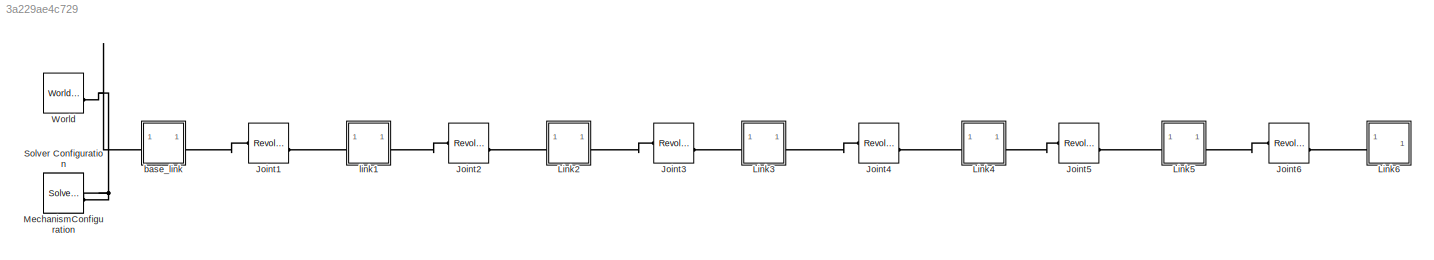
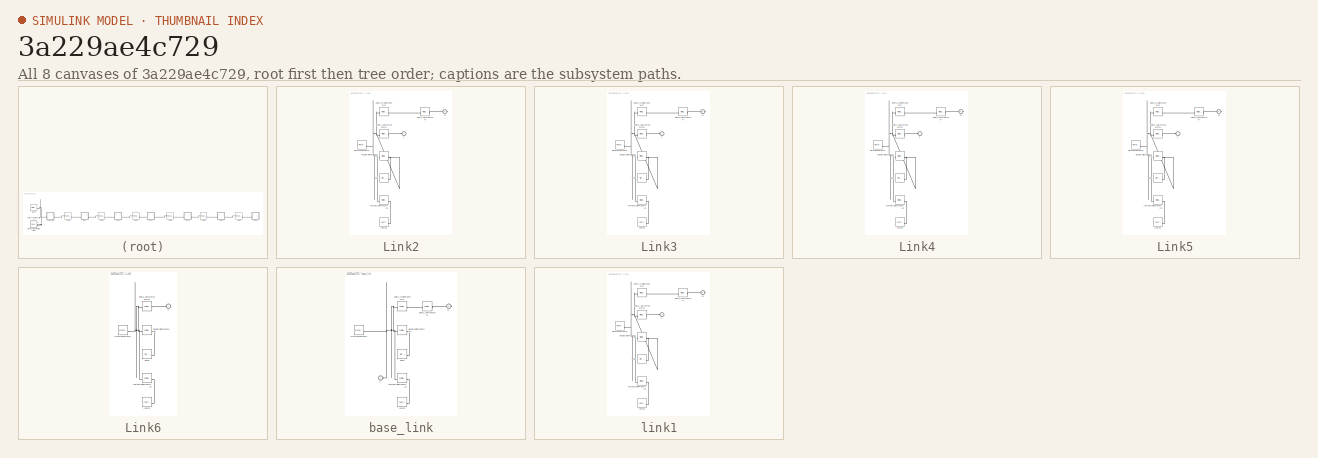
[diagram: thumbnail index - all 8 canvases of the model, root first then tree order]
MODEL slx_3a229ae4c729
KIND model
CONFIG AbsTol = auto
CONFIG EnableMultiTasking = off
CONFIG FixedStep = auto
CONFIG MaxStep = auto
CONFIG MinStep = auto
CONFIG RelTol = 1e-3
CONFIG SampleTimeConstraint = Unconstrained
CONFIG SolverName = VariableStepAuto
CONFIG StartTime = 0.0
CONFIG StopTime = 10.0
BLOCK [Reference] Joint1  REF=sm_lib/Joints/Revolute Joint
  SourceBlock = sm_lib/Joints/Revolute Joint
  SourceType = Revolute Joint
BLOCK [Reference] Joint2  REF=sm_lib/Joints/Revolute Joint
  SourceBlock = sm_lib/Joints/Revolute Joint
  SourceType = Revolute Joint
BLOCK [Reference] Joint3  REF=sm_lib/Joints/Revolute Joint
  SourceBlock = sm_lib/Joints/Revolute Joint
  SourceType = Revolute Joint
BLOCK [Reference] Joint4  REF=sm_lib/Joints/Revolute Joint
  SourceBlock = sm_lib/Joints/Revolute Joint
  SourceType = Revolute Joint
BLOCK [Reference] Joint5  REF=sm_lib/Joints/Revolute Joint
  SourceBlock = sm_lib/Joints/Revolute Joint
  SourceType = Revolute Joint
BLOCK [Reference] Joint6  REF=sm_lib/Joints/Revolute Joint
  SourceBlock = sm_lib/Joints/Revolute Joint
  SourceType = Revolute Joint
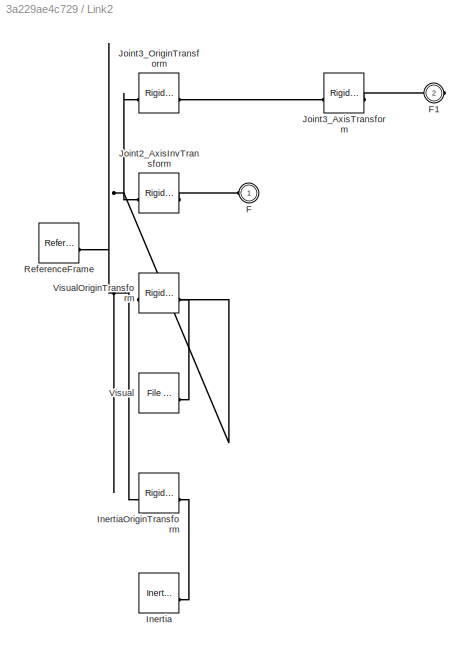
BLOCK [SubSystem] Link2
BLOCK [PMIOPort] Link2/F
  Side = Left
BLOCK [PMIOPort] Link2/F1
  Port = 2
  Side = Right
BLOCK [Reference] Link2/Inertia  REF=sm_lib/Body Elements/Inertia
  SourceBlock = sm_lib/Body Elements/Inertia
  SourceType = Inertia
BLOCK [Reference] Link2/InertiaOriginTransform  REF=sm_lib/Frames and
Transforms/Rigid
Transform
  SourceBlock = sm_lib/Frames and\nTransforms/Rigid\nTransform
  SourceType = Rigid\nTransform
BLOCK [Reference] Link2/Joint2_AxisInvTransform  REF=sm_lib/Frames and
Transforms/Rigid
Transform
  SourceBlock = sm_lib/Frames and\nTransforms/Rigid\nTransform
  SourceType = Rigid\nTransform
BLOCK [Reference] Link2/Joint3_AxisTransform  REF=sm_lib/Frames and
Transforms/Rigid
Transform
  SourceBlock = sm_lib/Frames and\nTransforms/Rigid\nTransform
  SourceType = Rigid\nTransform
BLOCK [Reference] Link2/Joint3_OriginTransform  REF=sm_lib/Frames and
Transforms/Rigid
Transform
  SourceBlock = sm_lib/Frames and\nTransforms/Rigid\nTransform
  SourceType = Rigid\nTransform
BLOCK [Reference] Link2/ReferenceFrame  REF=sm_lib/Frames and
Transforms/Reference
Frame
  SourceBlock = sm_lib/Frames and\nTransforms/Reference\nFrame
  SourceType = Reference\nFrame
BLOCK [Reference] Link2/Visual  REF=sm_lib/Body Elements/File Solid
  SourceBlock = sm_lib/Body Elements/File Solid
  SourceType = File Solid
BLOCK [Reference] Link2/VisualOriginTransform  REF=sm_lib/Frames and
Transforms/Rigid
Transform
  SourceBlock = sm_lib/Frames and\nTransforms/Rigid\nTransform
  SourceType = Rigid\nTransform
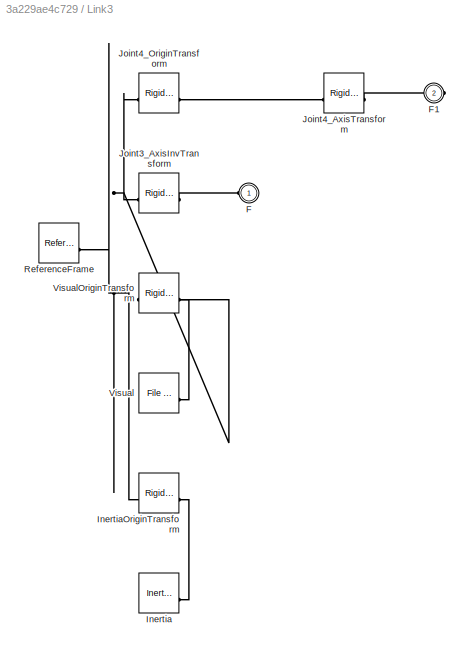
BLOCK [SubSystem] Link3
BLOCK [PMIOPort] Link3/F
  Side = Left
BLOCK [PMIOPort] Link3/F1
  Port = 2
  Side = Right
BLOCK [Reference] Link3/Inertia  REF=sm_lib/Body Elements/Inertia
  SourceBlock = sm_lib/Body Elements/Inertia
  SourceType = Inertia
BLOCK [Reference] Link3/InertiaOriginTransform  REF=sm_lib/Frames and
Transforms/Rigid
Transform
  SourceBlock = sm_lib/Frames and\nTransforms/Rigid\nTransform
  SourceType = Rigid\nTransform
BLOCK [Reference] Link3/Joint3_AxisInvTransform  REF=sm_lib/Frames and
Transforms/Rigid
Transform
  SourceBlock = sm_lib/Frames and\nTransforms/Rigid\nTransform
  SourceType = Rigid\nTransform
BLOCK [Reference] Link3/Joint4_AxisTransform  REF=sm_lib/Frames and
Transforms/Rigid
Transform
  SourceBlock = sm_lib/Frames and\nTransforms/Rigid\nTransform
  SourceType = Rigid\nTransform
BLOCK [Reference] Link3/Joint4_OriginTransform  REF=sm_lib/Frames and
Transforms/Rigid
Transform
  SourceBlock = sm_lib/Frames and\nTransforms/Rigid\nTransform
  SourceType = Rigid\nTransform
BLOCK [Reference] Link3/ReferenceFrame  REF=sm_lib/Frames and
Transforms/Reference
Frame
  SourceBlock = sm_lib/Frames and\nTransforms/Reference\nFrame
  SourceType = Reference\nFrame
BLOCK [Reference] Link3/Visual  REF=sm_lib/Body Elements/File Solid
  SourceBlock = sm_lib/Body Elements/File Solid
  SourceType = File Solid
BLOCK [Reference] Link3/VisualOriginTransform  REF=sm_lib/Frames and
Transforms/Rigid
Transform
  SourceBlock = sm_lib/Frames and\nTransforms/Rigid\nTransform
  SourceType = Rigid\nTransform
BLOCK [SubSystem] Link4
BLOCK [PMIOPort] Link4/F
  Side = Left
BLOCK [PMIOPort] Link4/F1
  Port = 2
  Side = Right
BLOCK [Reference] Link4/Inertia  REF=sm_lib/Body Elements/Inertia
  SourceBlock = sm_lib/Body Elements/Inertia
  SourceType = Inertia
BLOCK [Reference] Link4/InertiaOriginTransform  REF=sm_lib/Frames and
Transforms/Rigid
Transform
  SourceBlock = sm_lib/Frames and\nTransforms/Rigid\nTransform
  SourceType = Rigid\nTransform
BLOCK [Reference] Link4/Joint4_AxisInvTransform  REF=sm_lib/Frames and
Transforms/Rigid
Transform
  SourceBlock = sm_lib/Frames and\nTransforms/Rigid\nTransform
  SourceType = Rigid\nTransform
BLOCK [Reference] Link4/Joint5_AxisTransform  REF=sm_lib/Frames and
Transforms/Rigid
Transform
  SourceBlock = sm_lib/Frames and\nTransforms/Rigid\nTransform
  SourceType = Rigid\nTransform
BLOCK [Reference] Link4/Joint5_OriginTransform  REF=sm_lib/Frames and
Transforms/Rigid
Transform
  SourceBlock = sm_lib/Frames and\nTransforms/Rigid\nTransform
  SourceType = Rigid\nTransform
BLOCK [Reference] Link4/ReferenceFrame  REF=sm_lib/Frames and
Transforms/Reference
Frame
  SourceBlock = sm_lib/Frames and\nTransforms/Reference\nFrame
  SourceType = Reference\nFrame
BLOCK [Reference] Link4/Visual  REF=sm_lib/Body Elements/File Solid
  SourceBlock = sm_lib/Body Elements/File Solid
  SourceType = File Solid
BLOCK [Reference] Link4/VisualOriginTransform  REF=sm_lib/Frames and
Transforms/Rigid
Transform
  SourceBlock = sm_lib/Frames and\nTransforms/Rigid\nTransform
  SourceType = Rigid\nTransform
BLOCK [SubSystem] Link5
BLOCK [PMIOPort] Link5/F
  Side = Left
BLOCK [PMIOPort] Link5/F1
  Port = 2
  Side = Right
BLOCK [Reference] Link5/Inertia  REF=sm_lib/Body Elements/Inertia
  SourceBlock = sm_lib/Body Elements/Inertia
  SourceType = Inertia
BLOCK [Reference] Link5/InertiaOriginTransform  REF=sm_lib/Frames and
Transforms/Rigid
Transform
  SourceBlock = sm_lib/Frames and\nTransforms/Rigid\nTransform
  SourceType = Rigid\nTransform
BLOCK [Reference] Link5/Joint5_AxisInvTransform  REF=sm_lib/Frames and
Transforms/Rigid
Transform
  SourceBlock = sm_lib/Frames and\nTransforms/Rigid\nTransform
  SourceType = Rigid\nTransform
BLOCK [Reference] Link5/Joint6_AxisTransform  REF=sm_lib/Frames and
Transforms/Rigid
Transform
  SourceBlock = sm_lib/Frames and\nTransforms/Rigid\nTransform
  SourceType = Rigid\nTransform
BLOCK [Reference] Link5/Joint6_OriginTransform  REF=sm_lib/Frames and
Transforms/Rigid
Transform
  SourceBlock = sm_lib/Frames and\nTransforms/Rigid\nTransform
  SourceType = Rigid\nTransform
BLOCK [Reference] Link5/ReferenceFrame  REF=sm_lib/Frames and
Transforms/Reference
Frame
  SourceBlock = sm_lib/Frames and\nTransforms/Reference\nFrame
  SourceType = Reference\nFrame
BLOCK [Reference] Link5/Visual  REF=sm_lib/Body Elements/File Solid
  SourceBlock = sm_lib/Body Elements/File Solid
  SourceType = File Solid
BLOCK [Reference] Link5/VisualOriginTransform  REF=sm_lib/Frames and
Transforms/Rigid
Transform
  SourceBlock = sm_lib/Frames and\nTransforms/Rigid\nTransform
  SourceType = Rigid\nTransform
BLOCK [SubSystem] Link6
BLOCK [PMIOPort] Link6/F
  Side = Left
BLOCK [Reference] Link6/Inertia  REF=sm_lib/Body Elements/Inertia
  SourceBlock = sm_lib/Body Elements/Inertia
  SourceType = Inertia
BLOCK [Reference] Link6/InertiaOriginTransform  REF=sm_lib/Frames and
Transforms/Rigid
Transform
  SourceBlock = sm_lib/Frames and\nTransforms/Rigid\nTransform
  SourceType = Rigid\nTransform
BLOCK [Reference] Link6/Joint6_AxisInvTransform  REF=sm_lib/Frames and
Transforms/Rigid
Transform
  SourceBlock = sm_lib/Frames and\nTransforms/Rigid\nTransform
  SourceType = Rigid\nTransform
BLOCK [Reference] Link6/ReferenceFrame  REF=sm_lib/Frames and
Transforms/Reference
Frame
  SourceBlock = sm_lib/Frames and\nTransforms/Reference\nFrame
  SourceType = Reference\nFrame
BLOCK [Reference] Link6/Visual  REF=sm_lib/Body Elements/File Solid
  SourceBlock = sm_lib/Body Elements/File Solid
  SourceType = File Solid
BLOCK [Reference] Link6/VisualOriginTransform  REF=sm_lib/Frames and
Transforms/Rigid
Transform
  SourceBlock = sm_lib/Frames and\nTransforms/Rigid\nTransform
  SourceType = Rigid\nTransform
BLOCK [Reference] MechanismConfiguration  REF=sm_lib/Utilities/Mechanism
Configuration
  SourceBlock = sm_lib/Utilities/Mechanism\nConfiguration
  SourceType = Mechanism\nConfiguration
BLOCK [Reference] Solver Configuration  REF=nesl_utility/Solver
Configuration
  SourceBlock = nesl_utility/Solver\nConfiguration
  SourceType = Solver\nConfiguration
BLOCK [Reference] World  REF=sm_lib/Frames and
Transforms/World Frame
  SourceBlock = sm_lib/Frames and\nTransforms/World Frame
  SourceType = World Frame
BLOCK [SubSystem] base_link
BLOCK [PMIOPort] base_link/F
  Side = Left
BLOCK [PMIOPort] base_link/F1
  Port = 2
  Side = Right
BLOCK [Reference] base_link/Inertia  REF=sm_lib/Body Elements/Inertia
  SourceBlock = sm_lib/Body Elements/Inertia
  SourceType = Inertia
BLOCK [Reference] base_link/InertiaOriginTransform  REF=sm_lib/Frames and
Transforms/Rigid
Transform
  SourceBlock = sm_lib/Frames and\nTransforms/Rigid\nTransform
  SourceType = Rigid\nTransform
BLOCK [Reference] base_link/Joint1_AxisTransform  REF=sm_lib/Frames and
Transforms/Rigid
Transform
  SourceBlock = sm_lib/Frames and\nTransforms/Rigid\nTransform
  SourceType = Rigid\nTransform
BLOCK [Reference] base_link/Joint1_OriginTransform  REF=sm_lib/Frames and
Transforms/Rigid
Transform
  SourceBlock = sm_lib/Frames and\nTransforms/Rigid\nTransform
  SourceType = Rigid\nTransform
BLOCK [Reference] base_link/ReferenceFrame  REF=sm_lib/Frames and
Transforms/Reference
Frame
  SourceBlock = sm_lib/Frames and\nTransforms/Reference\nFrame
  SourceType = Reference\nFrame
BLOCK [Reference] base_link/Visual  REF=sm_lib/Body Elements/File Solid
  SourceBlock = sm_lib/Body Elements/File Solid
  SourceType = File Solid
BLOCK [Reference] base_link/VisualOriginTransform  REF=sm_lib/Frames and
Transforms/Rigid
Transform
  SourceBlock = sm_lib/Frames and\nTransforms/Rigid\nTransform
  SourceType = Rigid\nTransform
BLOCK [SubSystem] link1
BLOCK [PMIOPort] link1/F
  Side = Left
BLOCK [PMIOPort] link1/F1
  Port = 2
  Side = Right
BLOCK [Reference] link1/Inertia  REF=sm_lib/Body Elements/Inertia
  SourceBlock = sm_lib/Body Elements/Inertia
  SourceType = Inertia
BLOCK [Reference] link1/InertiaOriginTransform  REF=sm_lib/Frames and
Transforms/Rigid
Transform
  SourceBlock = sm_lib/Frames and\nTransforms/Rigid\nTransform
  SourceType = Rigid\nTransform
BLOCK [Reference] link1/Joint1_AxisInvTransform  REF=sm_lib/Frames and
Transforms/Rigid
Transform
  SourceBlock = sm_lib/Frames and\nTransforms/Rigid\nTransform
  SourceType = Rigid\nTransform
BLOCK [Reference] link1/Joint2_AxisTransform  REF=sm_lib/Frames and
Transforms/Rigid
Transform
  SourceBlock = sm_lib/Frames and\nTransforms/Rigid\nTransform
  SourceType = Rigid\nTransform
BLOCK [Reference] link1/Joint2_OriginTransform  REF=sm_lib/Frames and
Transforms/Rigid
Transform
  SourceBlock = sm_lib/Frames and\nTransforms/Rigid\nTransform
  SourceType = Rigid\nTransform
BLOCK [Reference] link1/ReferenceFrame  REF=sm_lib/Frames and
Transforms/Reference
Frame
  SourceBlock = sm_lib/Frames and\nTransforms/Reference\nFrame
  SourceType = Reference\nFrame
BLOCK [Reference] link1/Visual  REF=sm_lib/Body Elements/File Solid
  SourceBlock = sm_lib/Body Elements/File Solid
  SourceType = File Solid
BLOCK [Reference] link1/VisualOriginTransform  REF=sm_lib/Frames and
Transforms/Rigid
Transform
  SourceBlock = sm_lib/Frames and\nTransforms/Rigid\nTransform
  SourceType = Rigid\nTransform
PLINE Joint1:LConn1 -- base_link:RConn1
PLINE Joint1:RConn1 -- link1:LConn1
PLINE Joint2:LConn1 -- link1:RConn1
PLINE Joint2:RConn1 -- Link2:LConn1
PLINE Joint3:LConn1 -- Link2:RConn1
PLINE Joint3:RConn1 -- Link3:LConn1
PLINE Joint4:LConn1 -- Link3:RConn1
PLINE Joint4:RConn1 -- Link4:LConn1
PLINE Joint5:LConn1 -- Link4:RConn1
PLINE Joint5:RConn1 -- Link5:LConn1
PLINE Joint6:LConn1 -- Link5:RConn1
PLINE Joint6:RConn1 -- Link6:LConn1
PLINE Link2/F1:RConn1 -- Link2/Joint3_AxisTransform:RConn1
PLINE Link2/F:RConn1 -- Link2/Joint2_AxisInvTransform:RConn1
PLINE Link2/Inertia:RConn1 -- Link2/InertiaOriginTransform:RConn1
PNET net1: Link2/InertiaOriginTransform:LConn1 -- Link2/Joint2_AxisInvTransform:LConn1 -- Link2/Joint3_OriginTransform:LConn1 -- Link2/ReferenceFrame:RConn1 -- Link2/VisualOriginTransform:LConn1
PLINE Link2/Joint3_AxisTransform:LConn1 -- Link2/Joint3_OriginTransform:RConn1
PLINE Link2/Visual:RConn1 -- Link2/VisualOriginTransform:RConn1
PLINE Link3/F1:RConn1 -- Link3/Joint4_AxisTransform:RConn1
PLINE Link3/F:RConn1 -- Link3/Joint3_AxisInvTransform:RConn1
PLINE Link3/Inertia:RConn1 -- Link3/InertiaOriginTransform:RConn1
PNET net2: Link3/InertiaOriginTransform:LConn1 -- Link3/Joint3_AxisInvTransform:LConn1 -- Link3/Joint4_OriginTransform:LConn1 -- Link3/ReferenceFrame:RConn1 -- Link3/VisualOriginTransform:LConn1
PLINE Link3/Joint4_AxisTransform:LConn1 -- Link3/Joint4_OriginTransform:RConn1
PLINE Link3/Visual:RConn1 -- Link3/VisualOriginTransform:RConn1
PLINE Link4/F1:RConn1 -- Link4/Joint5_AxisTransform:RConn1
PLINE Link4/F:RConn1 -- Link4/Joint4_AxisInvTransform:RConn1
PLINE Link4/Inertia:RConn1 -- Link4/InertiaOriginTransform:RConn1
PNET net3: Link4/InertiaOriginTransform:LConn1 -- Link4/Joint4_AxisInvTransform:LConn1 -- Link4/Joint5_OriginTransform:LConn1 -- Link4/ReferenceFrame:RConn1 -- Link4/VisualOriginTransform:LConn1
PLINE Link4/Joint5_AxisTransform:LConn1 -- Link4/Joint5_OriginTransform:RConn1
PLINE Link4/Visual:RConn1 -- Link4/VisualOriginTransform:RConn1
PLINE Link5/F1:RConn1 -- Link5/Joint6_AxisTransform:RConn1
PLINE Link5/F:RConn1 -- Link5/Joint5_AxisInvTransform:RConn1
PLINE Link5/Inertia:RConn1 -- Link5/InertiaOriginTransform:RConn1
PNET net4: Link5/InertiaOriginTransform:LConn1 -- Link5/Joint5_AxisInvTransform:LConn1 -- Link5/Joint6_OriginTransform:LConn1 -- Link5/ReferenceFrame:RConn1 -- Link5/VisualOriginTransform:LConn1
PLINE Link5/Joint6_AxisTransform:LConn1 -- Link5/Joint6_OriginTransform:RConn1
PLINE Link5/Visual:RConn1 -- Link5/VisualOriginTransform:RConn1
PLINE Link6/F:RConn1 -- Link6/Joint6_AxisInvTransform:RConn1
PLINE Link6/Inertia:RConn1 -- Link6/InertiaOriginTransform:RConn1
PNET net5: Link6/InertiaOriginTransform:LConn1 -- Link6/Joint6_AxisInvTransform:LConn1 -- Link6/ReferenceFrame:RConn1 -- Link6/VisualOriginTransform:LConn1
PLINE Link6/Visual:RConn1 -- Link6/VisualOriginTransform:RConn1
PNET net6: MechanismConfiguration:RConn1 -- Solver Configuration:RConn1 -- World:RConn1 -- base_link:LConn1
PLINE base_link/F1:RConn1 -- base_link/Joint1_AxisTransform:RConn1
PNET net7: base_link/F:RConn1 -- base_link/InertiaOriginTransform:LConn1 -- base_link/Joint1_OriginTransform:LConn1 -- base_link/ReferenceFrame:RConn1 -- base_link/VisualOriginTransform:LConn1
PLINE base_link/Inertia:RConn1 -- base_link/InertiaOriginTransform:RConn1
PLINE base_link/Joint1_AxisTransform:LConn1 -- base_link/Joint1_OriginTransform:RConn1
PLINE base_link/Visual:RConn1 -- base_link/VisualOriginTransform:RConn1
PLINE link1/F1:RConn1 -- link1/Joint2_AxisTransform:RConn1
PLINE link1/F:RConn1 -- link1/Joint1_AxisInvTransform:RConn1
PLINE link1/Inertia:RConn1 -- link1/InertiaOriginTransform:RConn1
PNET net8: link1/InertiaOriginTransform:LConn1 -- link1/Joint1_AxisInvTransform:LConn1 -- link1/Joint2_OriginTransform:LConn1 -- link1/ReferenceFrame:RConn1 -- link1/VisualOriginTransform:LConn1
PLINE link1/Joint2_AxisTransform:LConn1 -- link1/Joint2_OriginTransform:RConn1
PLINE link1/Visual:RConn1 -- link1/VisualOriginTransform:RConn1
note: PNET lines group multi-terminal physical nets as a canonical sorted terminal list (undirected conserving connections); 2-terminal nets keep the pairwise PLINE form
